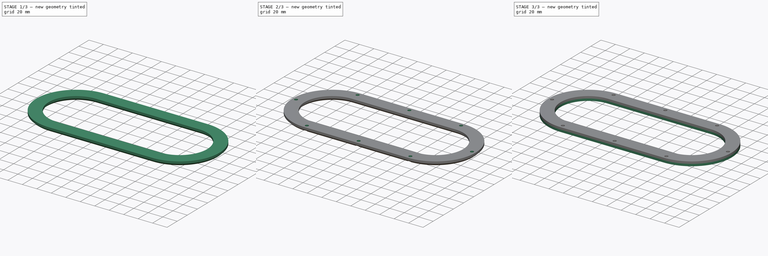
[diagram: build sequence overview — one tinted view per stage of 3, left to right]
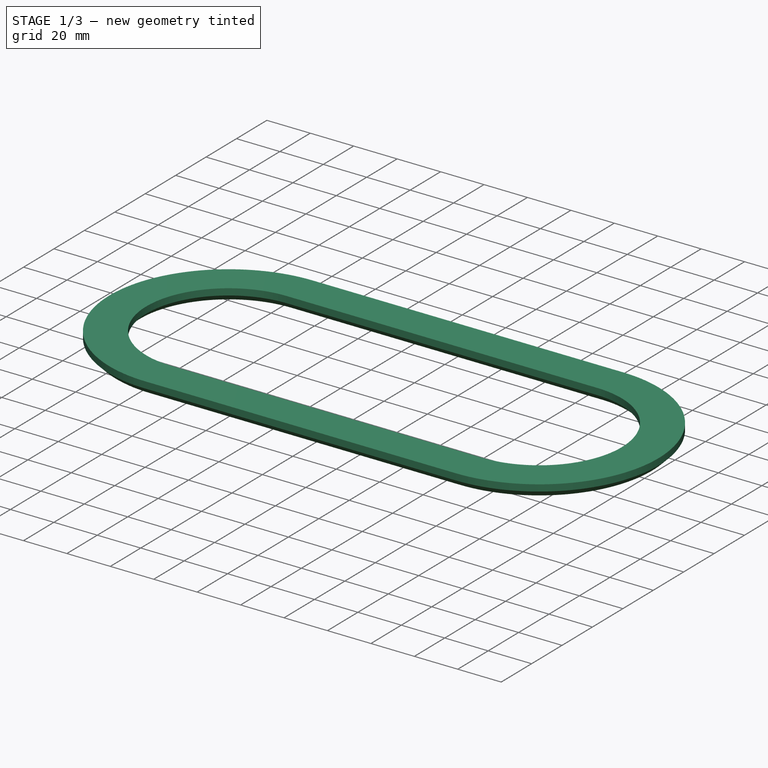
[diagram: stage 1 of 3 — iso view after this stage's code; geometry added in this stage tinted green]
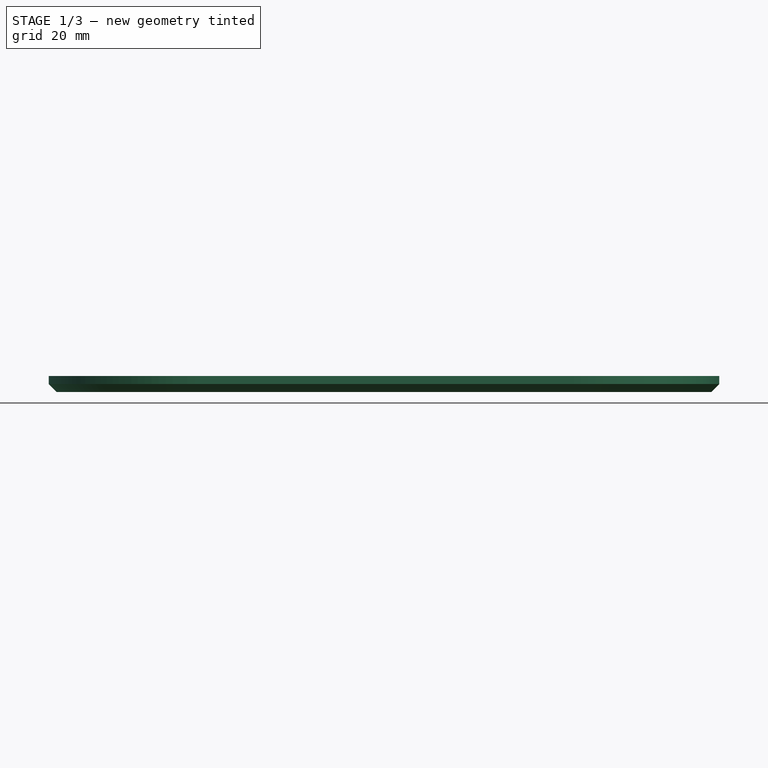
[diagram: stage 1 of 3 — front view after this stage's code; geometry added in this stage tinted green]
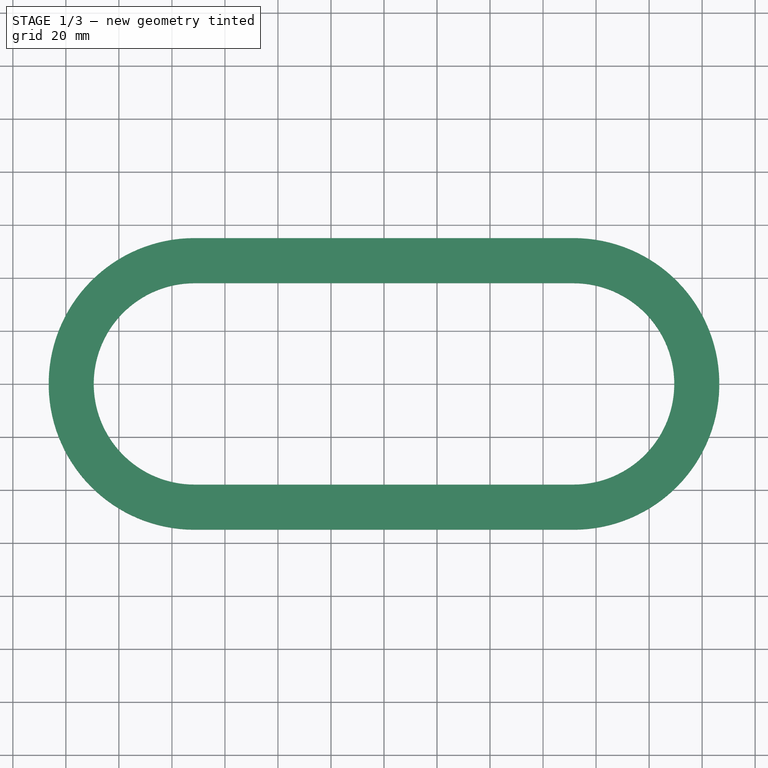
[diagram: stage 1 of 3 — top view after this stage's code; geometry added in this stage tinted green]
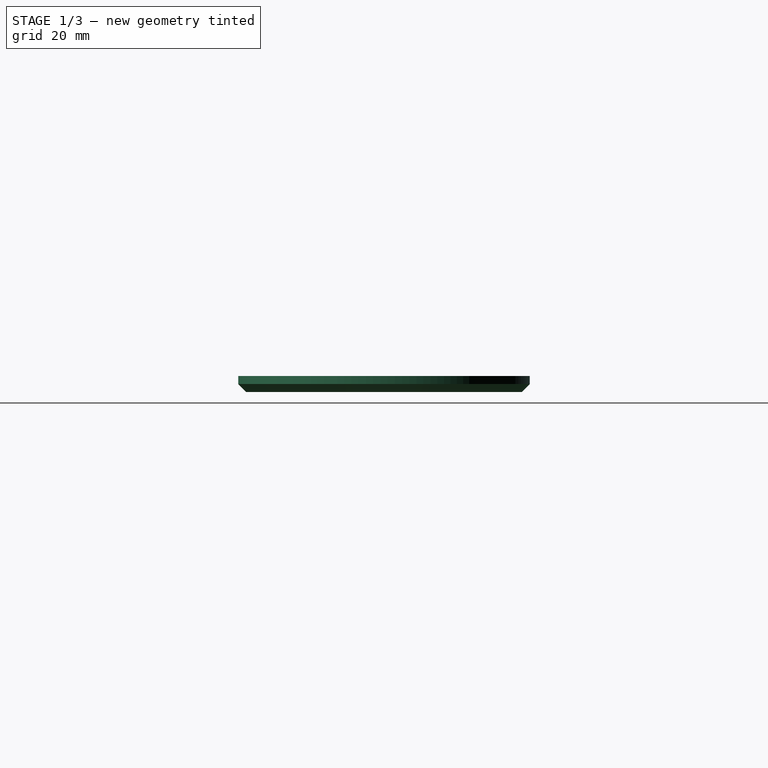
[diagram: stage 1 of 3 — right view after this stage's code; geometry added in this stage tinted green]
FCSTD DOCUMENT  (FreeCAD 0.21R33771 (Git))
Label: AC_Duct_Coupling
License: All rights reserved
LicenseURL: https://en.wikipedia.org/wiki/All_rights_reserved
objects: Sketcher::SketchObject×5, PartDesign::Pad×2, PartDesign::Hole×2, PartDesign::Body×2, Spreadsheet::Sheet×1, PartDesign::Chamfer×1, PartDesign::Pocket×1
note: 19 computed .brp shape members not serialized (recipe doc carries the construction recipe); baked Part::Feature solids carry a one-line shape summary decoded from their .brp

FEATURE [PartDesign::Body] Body
  Group = -> [Sketch,Pad,Sketch001,Hole]
  Origin = -> Origin
  Tip = -> Hole
FEATURE [Sketcher::SketchObject] Sketch002
  FullyConstrained = true
  MapMode = 5
  Support = -> [XY_Plane001]
  expr: Constraints[12] = <<config>>.height + 2 * <<config>>.x_clearance
  expr: Constraints[14] = <<config>>.length - <<config>>.height + 2 * <<config>>.x_clearance
  expr: Constraints[15] = <<config>>.flange + <<config>>.flange_ext
  sketch-geometry (10):
    g0: ArcOfCircle CenterX=-71.5 CenterY=0 CenterZ=0 NormalX=0 NormalY=0 NormalZ=1 AngleXU=0 Radius=55 StartAngle=1.5708 EndAngle=4.71239
    g1: ArcOfCircle CenterX=71.5 CenterY=2e-16 CenterZ=0 NormalX=0 NormalY=0 NormalZ=1 AngleXU=0 Radius=55 StartAngle=4.71239 EndAngle=7.85398
    g2: LineSegment StartX=-71.5 StartY=-55 StartZ=0 EndX=71.5 EndY=-55 EndZ=0
    g3: LineSegment StartX=71.5 StartY=55 StartZ=0 EndX=-71.5 EndY=55 EndZ=0
    g4: ArcOfCircle CenterX=-71.5 CenterY=0 CenterZ=0 NormalX=0 NormalY=0 NormalZ=1 AngleXU=0 Radius=38 StartAngle=1.5708 EndAngle=4.71239
    g5: ArcOfCircle CenterX=71.5 CenterY=2e-16 CenterZ=0 NormalX=0 NormalY=0 NormalZ=1 AngleXU=0 Radius=38 StartAngle=4.71239 EndAngle=7.85398
    g6: LineSegment StartX=-71.5 StartY=-38 StartZ=0 EndX=71.5 EndY=-38 EndZ=0
    g7: LineSegment StartX=71.5 StartY=38 StartZ=0 EndX=-71.5 EndY=38 EndZ=0
    g8: LineSegment StartX=-71.5 StartY=0 StartZ=0 EndX=0 EndY=0 EndZ=0
    g9: LineSegment StartX=0 StartY=0 StartZ=0 EndX=71.5 EndY=2e-16 EndZ=0
  constraints (22):
    c: Tangent(g0,g2) = -1.5708
    c: Tangent(g2,g1) = -1.5708
    c: Tangent(g1,g3) = -1.5708
    c: Tangent(g3,g0) = -1.5708
    c: Equal(g0,g1)
    c: Horizontal(g2)
    c: Tangent(g4,g6) = -1.5708
    c: Tangent(g6,g5) = -1.5708
    c: Tangent(g5,g7) = -1.5708
    c: Tangent(g7,g4) = -1.5708
    c: Equal(g4,g5)
    c: Coincident(g4,g0)
    c: DistanceY(g4,g4) = 76
    c: Coincident(g1,g5)
    c: DistanceX(g7,g7) = 143
    c: DistanceY(g4,g0) = 17
    c: Coincident(g8,g0)
    c: Horizontal(g8)
    c: Coincident(g9,g8)
    c: Coincident(g9,g1)
    c: Equal(g8,g9)
    c: Coincident(g8,g-1)
FEATURE [PartDesign::Pad] Pad001
  Direction = (0,0,1)
  Length = 6
  Length2 = 10
  Profile = -> Sketch002
  ReferenceAxis = -> Sketch002 [N_Axis]
  Type = 0
FEATURE [Sketcher::SketchObject] Sketch003
  FullyConstrained = true
  MapMode = 5
  Support = -> [XY_Plane001]
  expr: Constraints[177] = 5.5 + 2 * 0.15
  expr: Constraints[5] = <<config>>.height + 2 * <<config>>.x_clearance + 2 * <<config>>.flange + <<config>>.flange_ext
  expr: Constraints[6] = <<config>>.length - <<config>>.height + 2 * <<config>>.x_clearance
  sketch-geometry (62):
    g0: ArcOfCircle CenterX=-71.5 CenterY=0 CenterZ=0 NormalX=0 NormalY=0 NormalZ=1 AngleXU=0 Radius=50 StartAngle=1.5708 EndAngle=4.71239
    g1: ArcOfCircle CenterX=71.5 CenterY=5e-16 CenterZ=0 NormalX=0 NormalY=0 NormalZ=1 AngleXU=0 Radius=50 StartAngle=4.71239 EndAngle=7.85398
    g2: LineSegment StartX=-71.5 StartY=-50 StartZ=0 EndX=71.5 EndY=-50 EndZ=0
    g3: LineSegment StartX=71.5 StartY=50 StartZ=0 EndX=-71.5 EndY=50 EndZ=0
    g4: LineSegment StartX=-71.5 StartY=0 StartZ=0 EndX=0 EndY=0 EndZ=0
    g5: LineSegment StartX=0 StartY=0 StartZ=0 EndX=71.5 EndY=5e-16 EndZ=0
    g6: LineSegment StartX=-118.151 StartY=-3.9435e-12 StartZ=0 EndX=-119.826 EndY=2.9 EndZ=0
    g7: LineSegment StartX=-119.826 StartY=2.9 StartZ=0 EndX=-123.174 EndY=2.9 EndZ=0
    g8: LineSegment StartX=-123.174 StartY=2.9 StartZ=0 EndX=-124.849 EndY=-5.2824e-12 EndZ=0
    g9: LineSegment StartX=-124.849 StartY=-5.2824e-12 StartZ=0 EndX=-123.174 EndY=-2.9 EndZ=0
    g10: LineSegment StartX=-123.174 StartY=-2.9 StartZ=0 EndX=-119.826 EndY=-2.9 EndZ=0
    g11: LineSegment StartX=-119.826 StartY=-2.9 StartZ=0 EndX=-118.151 EndY=-3.9435e-12 EndZ=0
    g12: Circle CenterX=-121.5 CenterY=0 CenterZ=0 NormalX=0 NormalY=0 NormalZ=1 AngleXU=0 Radius=3.34863
    g13: LineSegment StartX=-69.8257 StartY=-52.9 StartZ=0 EndX=-68.1514 EndY=-50 EndZ=0
    g14: LineSegment StartX=-68.1514 StartY=-50 StartZ=0 EndX=-69.8257 EndY=-47.1 EndZ=0
    g15: LineSegment StartX=-69.8257 StartY=-47.1 StartZ=0 EndX=-73.1743 EndY=-47.1 EndZ=0
    g16: LineSegment StartX=-73.1743 StartY=-47.1 StartZ=0 EndX=-74.8486 EndY=-50 EndZ=0
    g17: LineSegment StartX=-74.8486 StartY=-50 StartZ=0 EndX=-73.1743 EndY=-52.9 EndZ=0
    g18: LineSegment StartX=-73.1743 StartY=-52.9 StartZ=0 EndX=-69.8257 EndY=-52.9 EndZ=0
    g19: Circle CenterX=-71.5 CenterY=-50 CenterZ=0 NormalX=0 NormalY=0 NormalZ=1 AngleXU=0 Radius=3.34863
    g20: LineSegment StartX=-69.8257 StartY=47.1 StartZ=0 EndX=-68.1514 EndY=50 EndZ=0
    g21: LineSegment StartX=-68.1514 StartY=50 StartZ=0 EndX=-69.8257 EndY=52.9 EndZ=0
    g22: LineSegment StartX=-69.8257 StartY=52.9 StartZ=0 EndX=-73.1743 EndY=52.9 EndZ=0
    g23: LineSegment StartX=-73.1743 StartY=52.9 StartZ=0 EndX=-74.8486 EndY=50 EndZ=0
    g24: LineSegment StartX=-74.8486 StartY=50 StartZ=0 EndX=-73.1743 EndY=47.1 EndZ=0
    g25: LineSegment StartX=-73.1743 StartY=47.1 StartZ=0 EndX=-69.8257 EndY=47.1 EndZ=0
    g26: Circle CenterX=-71.5 CenterY=50 CenterZ=0 NormalX=0 NormalY=0 NormalZ=1 AngleXU=0 Radius=3.34863
    g27: LineSegment StartX=1.67432 StartY=47.1 StartZ=0 EndX=3.34863 EndY=50 EndZ=0
    g28: LineSegment StartX=3.34863 StartY=50 StartZ=0 EndX=1.67432 EndY=52.9 EndZ=0
    g29: LineSegment StartX=1.67432 StartY=52.9 StartZ=0 EndX=-1.67432 EndY=52.9 EndZ=0
    g30: LineSegment StartX=-1.67432 StartY=52.9 StartZ=0 EndX=-3.34863 EndY=50 EndZ=0
    g31: LineSegment StartX=-3.34863 StartY=50 StartZ=0 EndX=-1.67432 EndY=47.1 EndZ=0
    g32: LineSegment StartX=-1.67432 StartY=47.1 StartZ=0 EndX=1.67432 EndY=47.1 EndZ=0
    g33: Circle CenterX=0 CenterY=50 CenterZ=0 NormalX=0 NormalY=0 NormalZ=1 AngleXU=0 Radius=3.34863
    g34: LineSegment StartX=73.1743 StartY=47.1 StartZ=0 EndX=74.8486 EndY=50 EndZ=0
    g35: LineSegment StartX=74.8486 StartY=50 StartZ=0 EndX=73.1743 EndY=52.9 EndZ=0
    g36: LineSegment StartX=73.1743 StartY=52.9 StartZ=0 EndX=69.8257 EndY=52.9 EndZ=0
    g37: LineSegment StartX=69.8257 StartY=52.9 StartZ=0 EndX=68.1514 EndY=50 EndZ=0
    g38: LineSegment StartX=68.1514 StartY=50 StartZ=0 EndX=69.8257 EndY=47.1 EndZ=0
    g39: LineSegment StartX=69.8257 StartY=47.1 StartZ=0 EndX=73.1743 EndY=47.1 EndZ=0
    g40: Circle CenterX=71.5 CenterY=50 CenterZ=0 NormalX=0 NormalY=0 NormalZ=1 AngleXU=0 Radius=3.34863
    g41: LineSegment StartX=123.174 StartY=-2.9 StartZ=0 EndX=124.849 EndY=0 EndZ=0
    g42: LineSegment StartX=124.849 StartY=2e-16 StartZ=0 EndX=123.174 EndY=2.9 EndZ=0
    g43: LineSegment StartX=123.174 StartY=2.9 StartZ=0 EndX=119.826 EndY=2.9 EndZ=0
    g44: LineSegment StartX=119.826 StartY=2.9 StartZ=0 EndX=118.151 EndY=0 EndZ=0
    g45: LineSegment StartX=118.151 StartY=0 StartZ=0 EndX=119.826 EndY=-2.9 EndZ=0
    g46: LineSegment StartX=119.826 StartY=-2.9 StartZ=0 EndX=123.174 EndY=-2.9 EndZ=0
    g47: Circle CenterX=121.5 CenterY=0 CenterZ=0 NormalX=0 NormalY=0 NormalZ=1 AngleXU=0 Radius=3.34863
    g48: LineSegment StartX=73.1743 StartY=-52.9 StartZ=0 EndX=74.8486 EndY=-50 EndZ=0
    g49: LineSegment StartX=74.8486 StartY=-50 StartZ=0 EndX=73.1743 EndY=-47.1 EndZ=0
    g50: LineSegment StartX=73.1743 StartY=-47.1 StartZ=0 EndX=69.8257 EndY=-47.1 EndZ=0
    g51: LineSegment StartX=69.8257 StartY=-47.1 StartZ=0 EndX=68.1514 EndY=-50 EndZ=0
    g52: LineSegment StartX=68.1514 StartY=-50 StartZ=0 EndX=69.8257 EndY=-52.9 EndZ=0
    g53: LineSegment StartX=69.8257 StartY=-52.9 StartZ=0 EndX=73.1743 EndY=-52.9 EndZ=0
    g54: Circle CenterX=71.5 CenterY=-50 CenterZ=0 NormalX=0 NormalY=0 NormalZ=1 AngleXU=0 Radius=3.34863
    g55: LineSegment StartX=3.34863 StartY=-50 StartZ=0 EndX=1.67432 EndY=-47.1 EndZ=0
    g56: LineSegment StartX=1.67432 StartY=-47.1 StartZ=0 EndX=-1.67432 EndY=-47.1 EndZ=0
    g57: LineSegment StartX=-1.67432 StartY=-47.1 StartZ=0 EndX=-3.34863 EndY=-50 EndZ=0
    g58: LineSegment StartX=-3.34863 StartY=-50 StartZ=0 EndX=-1.67432 EndY=-52.9 EndZ=0
    g59: LineSegment StartX=-1.67432 StartY=-52.9 StartZ=0 EndX=1.67432 EndY=-52.9 EndZ=0
    g60: LineSegment StartX=1.67432 StartY=-52.9 StartZ=0 EndX=3.34863 EndY=-50 EndZ=0
    g61: Circle CenterX=0 CenterY=-50 CenterZ=0 NormalX=0 NormalY=0 NormalZ=1 AngleXU=0 Radius=3.34863
  constraints (146):
    c: Tangent(g0,g2) = -1.5708
    c: Tangent(g2,g1) = -1.5708
    c: Tangent(g1,g3) = -1.5708
    c: Tangent(g3,g0) = -1.5708
    c: Equal(g0,g1)
    c: DistanceY(g0,g0) = 100
    c: DistanceX(g3,g3) = 143
    c: Horizontal(g4)
    c: Coincident(g5,g4)
    c: Equal(g4,g5)
    c: Coincident(g4,g-1)
    c: Horizontal(g3)
    c: Coincident(g5,g1)
    c: Coincident(g4,g0)
    c: Coincident(g6,g7)
    c: Coincident(g7,g8)
    c: Coincident(g8,g9)
    c: Coincident(g9,g10)
    c: Coincident(g10,g11)
    c: Coincident(g11,g6)
    c: Equal(g6, g7-g11) x5
    c: PointOnObject(g6,g12)
    c: PointOnObject(g7,g12)
    c: PointOnObject(g8,g12)
    c: PointOnObject(g9,g12)
    c: PointOnObject(g10,g12)
    c: PointOnObject(g11,g12)
    c: PointOnObject(g12,g0)
    c: Coincident(g13,g14)
    c: Coincident(g14,g15)
    c: Coincident(g15,g16)
    c: Coincident(g16,g17)
    c: Coincident(g17,g18)
    c: Coincident(g18,g13)
    c: Equal(g13, g14-g18) x5
    c: PointOnObject(g13,g19)
    c: PointOnObject(g14,g19)
    c: PointOnObject(g15,g19)
    c: PointOnObject(g16,g19)
    c: PointOnObject(g17,g19)
    c: PointOnObject(g18,g19)
    c: Coincident(g19,g0)
    c: Coincident(g20,g21)
    c: Coincident(g21,g22)
    c: Coincident(g22,g23)
    c: Coincident(g23,g24)
    c: Coincident(g24,g25)
    c: Coincident(g25,g20)
    c: Equal(g20, g21-g25) x5
    c: PointOnObject(g20,g26)
    c: PointOnObject(g21,g26)
    c: PointOnObject(g22,g26)
    c: PointOnObject(g23,g26)
    c: PointOnObject(g24,g26)
    c: PointOnObject(g25,g26)
    c: Coincident(g26,g0)
    c: Coincident(g27,g28)
    c: Coincident(g28,g29)
    c: Coincident(g29,g30)
    c: Coincident(g30,g31)
    c: Coincident(g31,g32)
    c: Coincident(g32,g27)
    c: Equal(g27, g28-g32) x5
    c: PointOnObject(g27,g33)
    c: PointOnObject(g28,g33)
    c: PointOnObject(g29,g33)
    c: PointOnObject(g30,g33)
    c: PointOnObject(g31,g33)
    c: PointOnObject(g32,g33)
    c: PointOnObject(g33,g-2)
    c: Coincident(g34,g35)
    c: Coincident(g35,g36)
    c: Coincident(g36,g37)
    c: Coincident(g37,g38)
    c: Coincident(g38,g39)
    c: Coincident(g39,g34)
    c: Equal(g34, g35-g39) x5
    c: PointOnObject(g34,g40)
    c: PointOnObject(g35,g40)
    c: PointOnObject(g36,g40)
    c: PointOnObject(g37,g40)
    c: PointOnObject(g38,g40)
    c: PointOnObject(g39,g40)
    c: Coincident(g40,g1)
    c: Coincident(g41,g42)
    c: Coincident(g42,g43)
    c: Coincident(g43,g44)
    c: Coincident(g44,g45)
    c: Coincident(g45,g46)
    c: Coincident(g46,g41)
    c: Equal(g41, g42-g46) x5
    c: PointOnObject(g41,g47)
    c: PointOnObject(g42,g47)
    c: PointOnObject(g43,g47)
    c: PointOnObject(g44,g47)
    c: PointOnObject(g45,g47)
    c: PointOnObject(g46,g47)
    c: PointOnObject(g47,g1)
    c: Coincident(g48,g49)
    c: Coincident(g49,g50)
    c: Coincident(g50,g51)
    c: Coincident(g51,g52)
    c: Coincident(g52,g53)
    c: Coincident(g53,g48)
    c: Equal(g48, g49-g53) x5
    c: PointOnObject(g48,g54)
    c: PointOnObject(g49,g54)
    c: PointOnObject(g50,g54)
    c: PointOnObject(g51,g54)
    c: PointOnObject(g52,g54)
    c: PointOnObject(g53,g54)
    c: Coincident(g54,g1)
    c: Horizontal(g53)
    c: Horizontal(g46)
    c: Horizontal(g39)
    c: Horizontal(g32)
    c: Horizontal(g25)
    c: Horizontal(g10)
    c: Equal(g26,g12)
    c: Equal(g12,g19)
    c: Equal(g54,g47)
    c: Equal(g47,g40)
    c: Equal(g40,g33)
    c: Horizontal(g18)
    c: PointOnObject(g12,g-1)
    c: Equal(g26,g33)
    c: Coincident(g55,g56)
    c: Coincident(g56,g57)
    c: Coincident(g57,g58)
    c: Coincident(g58,g59)
    c: Coincident(g59,g60)
    c: Coincident(g60,g55)
    c: Equal(g55, g56-g60) x5
    c: PointOnObject(g55,g61)
    c: PointOnObject(g56,g61)
    c: PointOnObject(g57,g61)
    c: PointOnObject(g58,g61)
    c: PointOnObject(g59,g61)
    c: PointOnObject(g60,g61)
    c: PointOnObject(g61,g-2)
    c: Horizontal(g59)
    c: Equal(g19,g61)
    c: PointOnObject(g61,g2)
    c: PointOnObject(g47,g-1)
    c: PointOnObject(g33,g3)
    c: DistanceY(g9,g7) = 5.8
FEATURE [PartDesign::Chamfer] Chamfer
  Angle = 45
  Base = -> Pad001 [Edge6,Edge9,Edge11,Edge3,Edge18,Edge15,Edge23,Edge21]
  BaseFeature = -> Pad001
  ChamferType = 0
  FlipDirection = false
  Size = 3
  Size2 = 1
  SupportTransform = false
  UseAllEdges = false
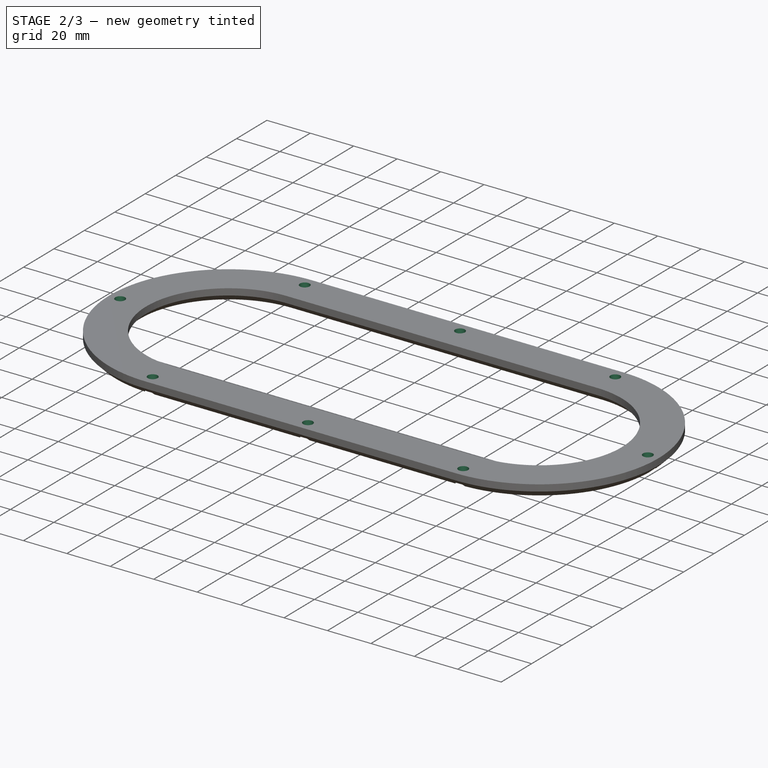
[diagram: stage 2 of 3 — iso view after this stage's code; geometry added in this stage tinted green]
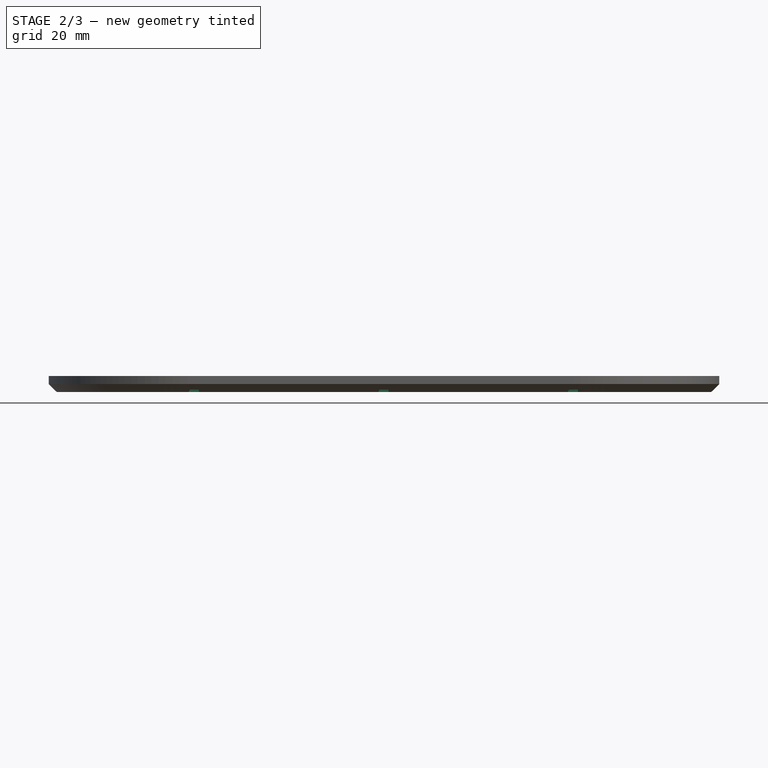
[diagram: stage 2 of 3 — front view after this stage's code; geometry added in this stage tinted green]
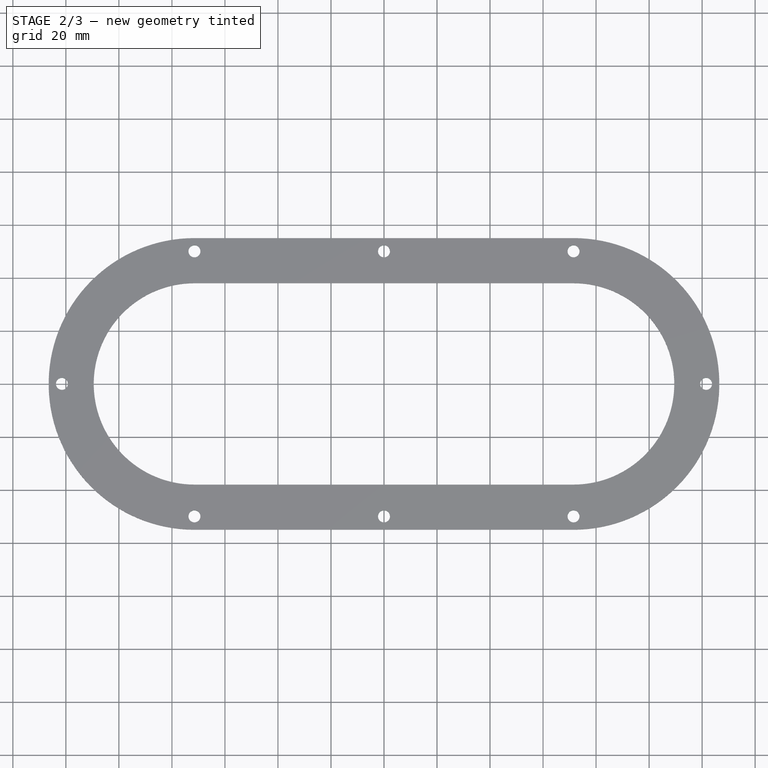
[diagram: stage 2 of 3 — top view after this stage's code; geometry added in this stage tinted green]
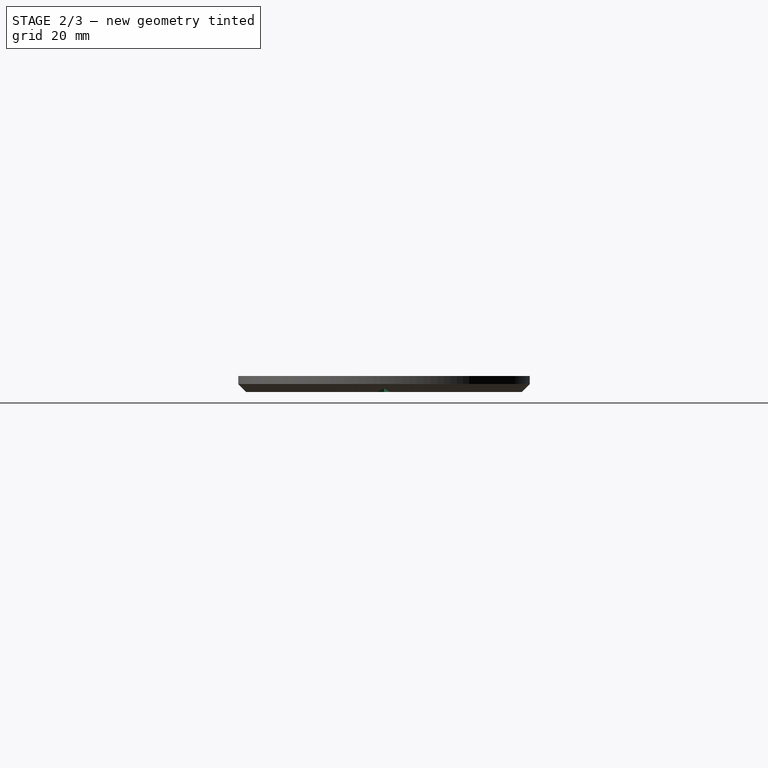
[diagram: stage 2 of 3 — right view after this stage's code; geometry added in this stage tinted green]
FEATURE [PartDesign::Pocket] Pocket
  BaseFeature = -> Chamfer
  Direction = (0,0,-1)
  Length = 4
  Length2 = 5
  Profile = -> Sketch003
  ReferenceAxis = -> Sketch003 [N_Axis]
  Reversed = true
  Type = 0
FEATURE [Sketcher::SketchObject] Sketch004
  FullyConstrained = true
  MapMode = 5
  Support = -> [XY_Plane001]
  expr: Constraints[5] = <<config>>.height + 2 * <<config>>.x_clearance + 2 * <<config>>.flange + <<config>>.flange_ext
  expr: Constraints[6] = <<config>>.length - <<config>>.height + 2 * <<config>>.x_clearance
  sketch-geometry (14):
    g0: ArcOfCircle CenterX=-71.5 CenterY=0 CenterZ=0 NormalX=0 NormalY=0 NormalZ=1 AngleXU=0 Radius=50 StartAngle=1.5708 EndAngle=4.71239
    g1: ArcOfCircle CenterX=71.5 CenterY=-2.4e-15 CenterZ=0 NormalX=0 NormalY=0 NormalZ=1 AngleXU=0 Radius=50 StartAngle=4.71239 EndAngle=7.85398
    g2: LineSegment StartX=-71.5 StartY=-50 StartZ=0 EndX=71.5 EndY=-50 EndZ=0
    g3: LineSegment StartX=71.5 StartY=50 StartZ=0 EndX=-71.5 EndY=50 EndZ=0
    g4: LineSegment StartX=-71.5 StartY=0 StartZ=0 EndX=0 EndY=0 EndZ=0
    g5: LineSegment StartX=0 StartY=0 StartZ=0 EndX=71.5 EndY=-2.4e-15 EndZ=0
    g6: Circle CenterX=-71.5 CenterY=50 CenterZ=0 NormalX=0 NormalY=0 NormalZ=1 AngleXU=0 Radius=2
    g7: Circle CenterX=-121.5 CenterY=0 CenterZ=0 NormalX=0 NormalY=0 NormalZ=1 AngleXU=0 Radius=2
    g8: Circle CenterX=-71.5 CenterY=-50 CenterZ=0 NormalX=0 NormalY=0 NormalZ=1 AngleXU=0 Radius=2
    g9: Circle CenterX=71.5 CenterY=-50 CenterZ=0 NormalX=0 NormalY=0 NormalZ=1 AngleXU=0 Radius=2
    g10: Circle CenterX=121.5 CenterY=0 CenterZ=0 NormalX=0 NormalY=0 NormalZ=1 AngleXU=0 Radius=2
    g11: Circle CenterX=71.5 CenterY=50 CenterZ=0 NormalX=0 NormalY=0 NormalZ=1 AngleXU=0 Radius=2
    g12: Circle CenterX=0 CenterY=50 CenterZ=0 NormalX=0 NormalY=0 NormalZ=1 AngleXU=0 Radius=2
    g13: Circle CenterX=0 CenterY=-50 CenterZ=0 NormalX=0 NormalY=0 NormalZ=1 AngleXU=0 Radius=2
  constraints (34):
    c: Tangent(g0,g2) = -1.5708
    c: Tangent(g2,g1) = -1.5708
    c: Tangent(g1,g3) = -1.5708
    c: Tangent(g3,g0) = -1.5708
    c: Equal(g0,g1)
    c: DistanceY(g0,g0) = 100
    c: DistanceX(g3,g3) = 143
    c: Horizontal(g4)
    c: Coincident(g5,g4)
    c: Equal(g4,g5)
    c: Coincident(g4,g-1)
    c: Horizontal(g3)
    c: Coincident(g5,g1)
    c: Coincident(g4,g0)
    c: Coincident(g6,g0)
    c: PointOnObject(g7,g0)
    c: Coincident(g8,g0)
    c: Coincident(g9,g1)
    c: PointOnObject(g10,g1)
    c: Coincident(g11,g1)
    c: PointOnObject(g12,g3)
    c: PointOnObject(g13,g2)
    c: Equal(g13,g8)
    c: Equal(g8,g9)
    c: Equal(g9,g10)
    c: Equal(g10,g11)
    c: Equal(g11,g12)
    c: Equal(g12,g6)
    c: Equal(g6,g7)
    c: Diameter(g12) = 4
    c: PointOnObject(g7,g-1)
    c: PointOnObject(g10,g-1)
    c: PointOnObject(g12,g-2)
    c: PointOnObject(g13,g-2)
FEATURE [PartDesign::Hole] Hole001
  BaseFeature = -> Pocket
  CustomThreadClearance = 0
  Depth = 25
  DepthType = 0
  Diameter = 4.5
  DrillForDepth = false
  DrillPoint = 1
  DrillPointAngle = 118
  HoleCutCountersinkAngle = 90
  HoleCutCustomValues = false
  HoleCutDepth = 0
  HoleCutDiameter = 6.1
  HoleCutType = 0
  ModelThread = false
  Profile = -> Sketch004
  Reversed = true
  Tapered = false
  TaperedAngle = 90
  ThreadClass = 0
  ThreadDepth = 25
  ThreadDepthType = 0
  ThreadDirection = 0
  ThreadFit = 0
  ThreadSize = 0
  ThreadType = 0
  Threaded = false
  UseCustomThreadClearance = false
FEATURE [PartDesign::Body] Body001  label="BodyOutside"
  Group = -> [Sketch002,Pad001,Sketch003,Chamfer,Pocket,Sketch004,Hole001]
  Origin = -> Origin001
  Tip = -> Hole001
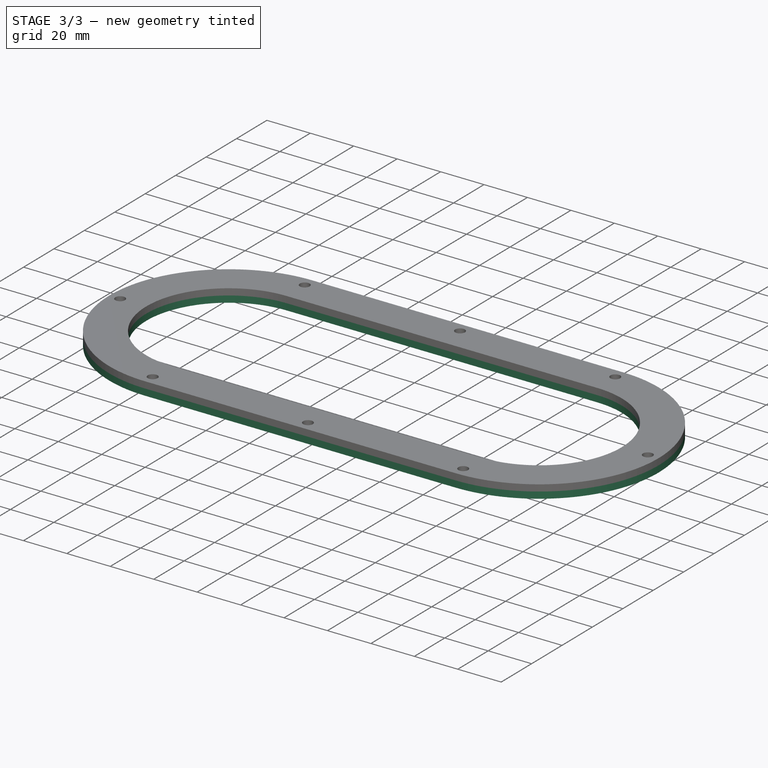
[diagram: stage 3 of 3 — iso view after this stage's code; geometry added in this stage tinted green]
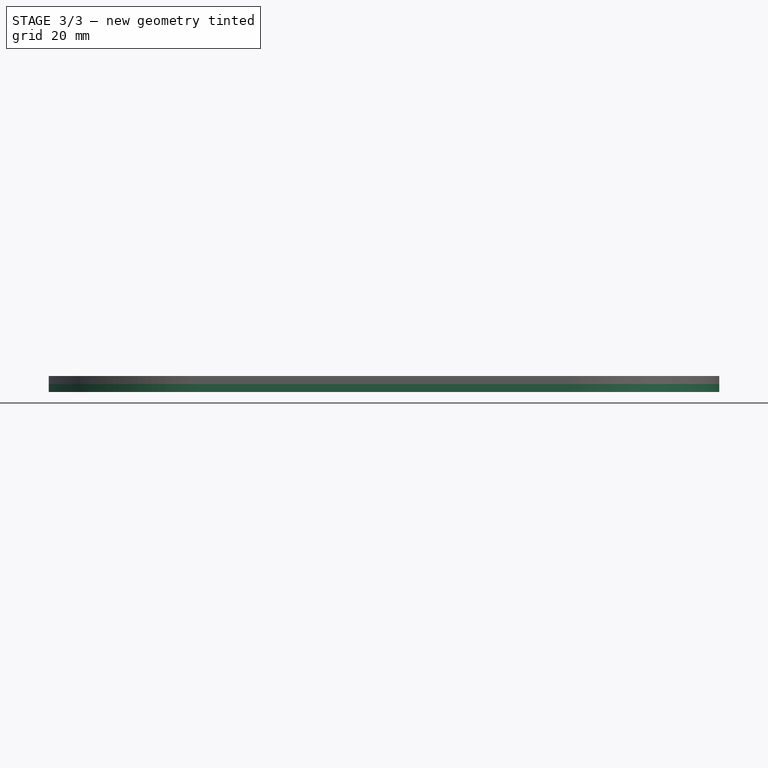
[diagram: stage 3 of 3 — front view after this stage's code; geometry added in this stage tinted green]
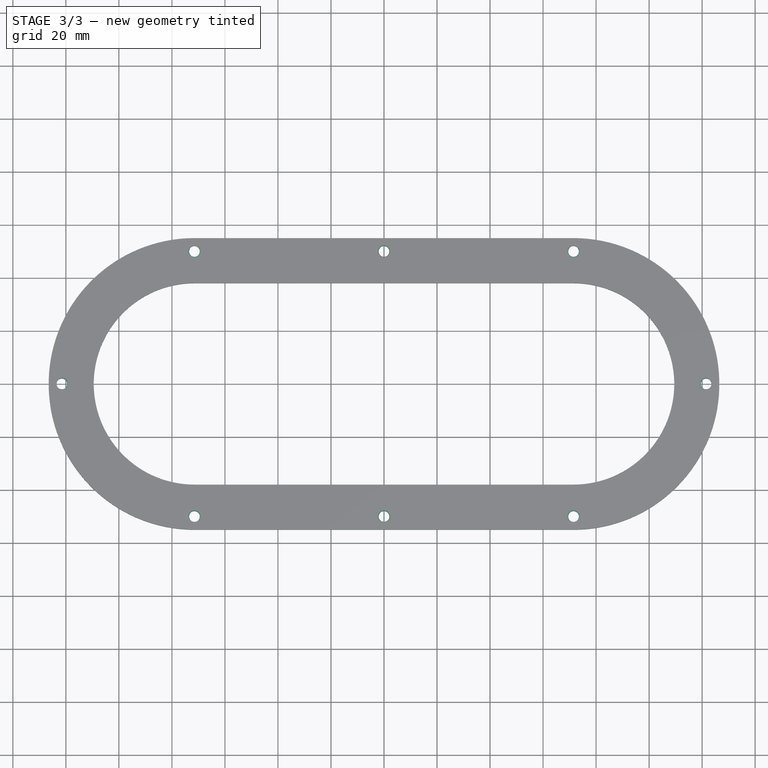
[diagram: stage 3 of 3 — top view after this stage's code; geometry added in this stage tinted green]
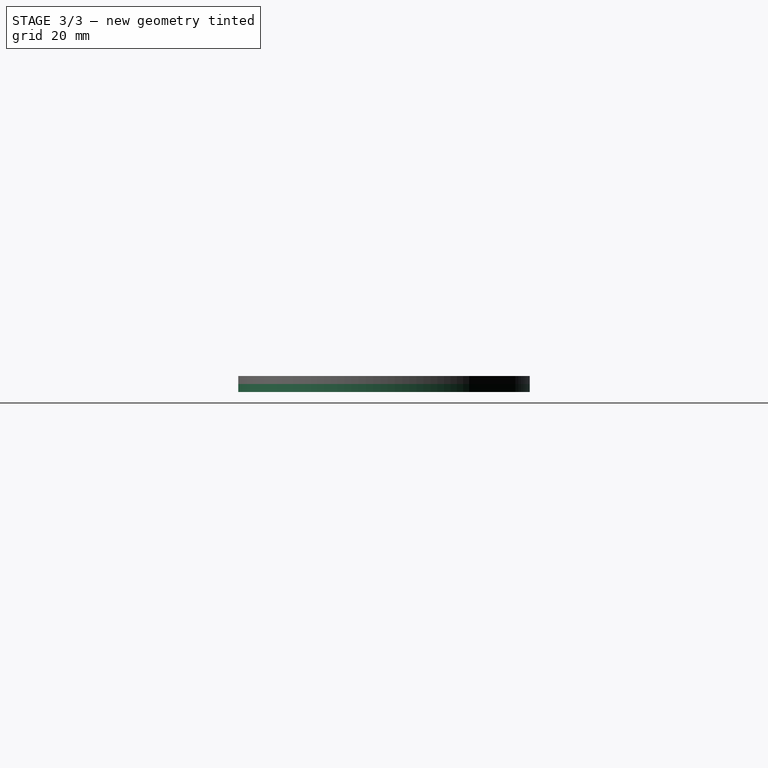
[diagram: stage 3 of 3 — right view after this stage's code; geometry added in this stage tinted green]
FEATURE [Spreadsheet::Sheet] Spreadsheet  label="config"
  cells = A1='height; B1(height)==74 mm; A2='length; B2(length)==215 mm; A3='thickness; B3(thick)==3 mm; A4='flange; B4(flange)==7 mm; A5='x clearance; B5(x_clearance)==1 mm; A6='flange extend; B6(flange_ext)==10 mm
FEATURE [Sketcher::SketchObject] Sketch
  FullyConstrained = true
  MapMode = 5
  Support = -> [XY_Plane]
  expr: Constraints[12] = <<config>>.height + 2 * <<config>>.x_clearance
  expr: Constraints[14] = <<config>>.length - <<config>>.height + 2 * <<config>>.x_clearance
  expr: Constraints[15] = <<config>>.flange + <<config>>.flange_ext
  sketch-geometry (10):
    g0: ArcOfCircle CenterX=-71.5 CenterY=0 CenterZ=0 NormalX=0 NormalY=0 NormalZ=1 AngleXU=0 Radius=55 StartAngle=1.5708 EndAngle=4.71239
    g1: ArcOfCircle CenterX=71.5 CenterY=2e-16 CenterZ=0 NormalX=0 NormalY=0 NormalZ=1 AngleXU=0 Radius=55 StartAngle=4.71239 EndAngle=7.85398
    g2: LineSegment StartX=-71.5 StartY=-55 StartZ=0 EndX=71.5 EndY=-55 EndZ=0
    g3: LineSegment StartX=71.5 StartY=55 StartZ=0 EndX=-71.5 EndY=55 EndZ=0
    g4: ArcOfCircle CenterX=-71.5 CenterY=0 CenterZ=0 NormalX=0 NormalY=0 NormalZ=1 AngleXU=0 Radius=38 StartAngle=1.5708 EndAngle=4.71239
    g5: ArcOfCircle CenterX=71.5 CenterY=2e-16 CenterZ=0 NormalX=0 NormalY=0 NormalZ=1 AngleXU=0 Radius=38 StartAngle=4.71239 EndAngle=7.85398
    g6: LineSegment StartX=-71.5 StartY=-38 StartZ=0 EndX=71.5 EndY=-38 EndZ=0
    g7: LineSegment StartX=71.5 StartY=38 StartZ=0 EndX=-71.5 EndY=38 EndZ=0
    g8: LineSegment StartX=-71.5 StartY=0 StartZ=0 EndX=0 EndY=0 EndZ=0
    g9: LineSegment StartX=0 StartY=0 StartZ=0 EndX=71.5 EndY=2e-16 EndZ=0
  constraints (22):
    c: Tangent(g0,g2) = -1.5708
    c: Tangent(g2,g1) = -1.5708
    c: Tangent(g1,g3) = -1.5708
    c: Tangent(g3,g0) = -1.5708
    c: Equal(g0,g1)
    c: Horizontal(g2)
    c: Tangent(g4,g6) = -1.5708
    c: Tangent(g6,g5) = -1.5708
    c: Tangent(g5,g7) = -1.5708
    c: Tangent(g7,g4) = -1.5708
    c: Equal(g4,g5)
    c: Coincident(g4,g0)
    c: DistanceY(g4,g4) = 76
    c: Coincident(g1,g5)
    c: DistanceX(g7,g7) = 143
    c: DistanceY(g4,g0) = 17
    c: Coincident(g8,g0)
    c: Horizontal(g8)
    c: Coincident(g9,g8)
    c: Coincident(g9,g1)
    c: Equal(g8,g9)
    c: Coincident(g8,g-1)
FEATURE [PartDesign::Pad] Pad
  Direction = (0,0,1)
  Length = 3
  Length2 = 10
  Profile = -> Sketch
  ReferenceAxis = -> Sketch [N_Axis]
  Type = 0
  expr: Length = <<config>>.thick
FEATURE [Sketcher::SketchObject] Sketch001
  FullyConstrained = true
  MapMode = 5
  Support = -> [XY_Plane]
  expr: Constraints[5] = <<config>>.height + 2 * <<config>>.x_clearance + 2 * <<config>>.flange + <<config>>.flange_ext
  expr: Constraints[6] = <<config>>.length - <<config>>.height + 2 * <<config>>.x_clearance
  sketch-geometry (14):
    g0: ArcOfCircle CenterX=-71.5 CenterY=0 CenterZ=0 NormalX=0 NormalY=0 NormalZ=1 AngleXU=0 Radius=50 StartAngle=1.5708 EndAngle=4.71239
    g1: ArcOfCircle CenterX=71.5 CenterY=-2.4e-15 CenterZ=0 NormalX=0 NormalY=0 NormalZ=1 AngleXU=0 Radius=50 StartAngle=4.71239 EndAngle=7.85398
    g2: LineSegment StartX=-71.5 StartY=-50 StartZ=0 EndX=71.5 EndY=-50 EndZ=0
    g3: LineSegment StartX=71.5 StartY=50 StartZ=0 EndX=-71.5 EndY=50 EndZ=0
    g4: LineSegment StartX=-71.5 StartY=0 StartZ=0 EndX=0 EndY=0 EndZ=0
    g5: LineSegment StartX=0 StartY=0 StartZ=0 EndX=71.5 EndY=-2.4e-15 EndZ=0
    g6: Circle CenterX=-71.5 CenterY=50 CenterZ=0 NormalX=0 NormalY=0 NormalZ=1 AngleXU=0 Radius=2
    g7: Circle CenterX=-121.5 CenterY=0 CenterZ=0 NormalX=0 NormalY=0 NormalZ=1 AngleXU=0 Radius=2
    g8: Circle CenterX=-71.5 CenterY=-50 CenterZ=0 NormalX=0 NormalY=0 NormalZ=1 AngleXU=0 Radius=2
    g9: Circle CenterX=71.5 CenterY=-50 CenterZ=0 NormalX=0 NormalY=0 NormalZ=1 AngleXU=0 Radius=2
    g10: Circle CenterX=121.5 CenterY=0 CenterZ=0 NormalX=0 NormalY=0 NormalZ=1 AngleXU=0 Radius=2
    g11: Circle CenterX=71.5 CenterY=50 CenterZ=0 NormalX=0 NormalY=0 NormalZ=1 AngleXU=0 Radius=2
    g12: Circle CenterX=0 CenterY=50 CenterZ=0 NormalX=0 NormalY=0 NormalZ=1 AngleXU=0 Radius=2
    g13: Circle CenterX=0 CenterY=-50 CenterZ=0 NormalX=0 NormalY=0 NormalZ=1 AngleXU=0 Radius=2
  constraints (34):
    c: Tangent(g0,g2) = -1.5708
    c: Tangent(g2,g1) = -1.5708
    c: Tangent(g1,g3) = -1.5708
    c: Tangent(g3,g0) = -1.5708
    c: Equal(g0,g1)
    c: DistanceY(g0,g0) = 100
    c: DistanceX(g3,g3) = 143
    c: Horizontal(g4)
    c: Coincident(g5,g4)
    c: Equal(g4,g5)
    c: Coincident(g4,g-1)
    c: Horizontal(g3)
    c: Coincident(g5,g1)
    c: Coincident(g4,g0)
    c: Coincident(g6,g0)
    c: PointOnObject(g7,g0)
    c: Coincident(g8,g0)
    c: Coincident(g9,g1)
    c: PointOnObject(g10,g1)
    c: Coincident(g11,g1)
    c: PointOnObject(g12,g3)
    c: PointOnObject(g13,g2)
    c: Equal(g13,g8)
    c: Equal(g8,g9)
    c: Equal(g9,g10)
    c: Equal(g10,g11)
    c: Equal(g11,g12)
    c: Equal(g12,g6)
    c: Equal(g6,g7)
    c: Diameter(g12) = 4
    c: PointOnObject(g7,g-1)
    c: PointOnObject(g10,g-1)
    c: PointOnObject(g12,g-2)
    c: PointOnObject(g13,g-2)
FEATURE [PartDesign::Hole] Hole
  BaseFeature = -> Pad
  CustomThreadClearance = 0
  Depth = 25
  DepthType = 0
  Diameter = 4
  DrillForDepth = false
  DrillPoint = 1
  DrillPointAngle = 118
  HoleCutCountersinkAngle = 90
  HoleCutCustomValues = false
  HoleCutDepth = 0
  HoleCutDiameter = 7
  HoleCutType = 2
  ModelThread = false
  Profile = -> Sketch001
  Reversed = true
  Tapered = false
  TaperedAngle = 90
  ThreadClass = 0
  ThreadDepth = 25
  ThreadDepthType = 0
  ThreadDirection = 0
  ThreadFit = 0
  ThreadSize = 0
  ThreadType = 0
  Threaded = false
  UseCustomThreadClearance = false
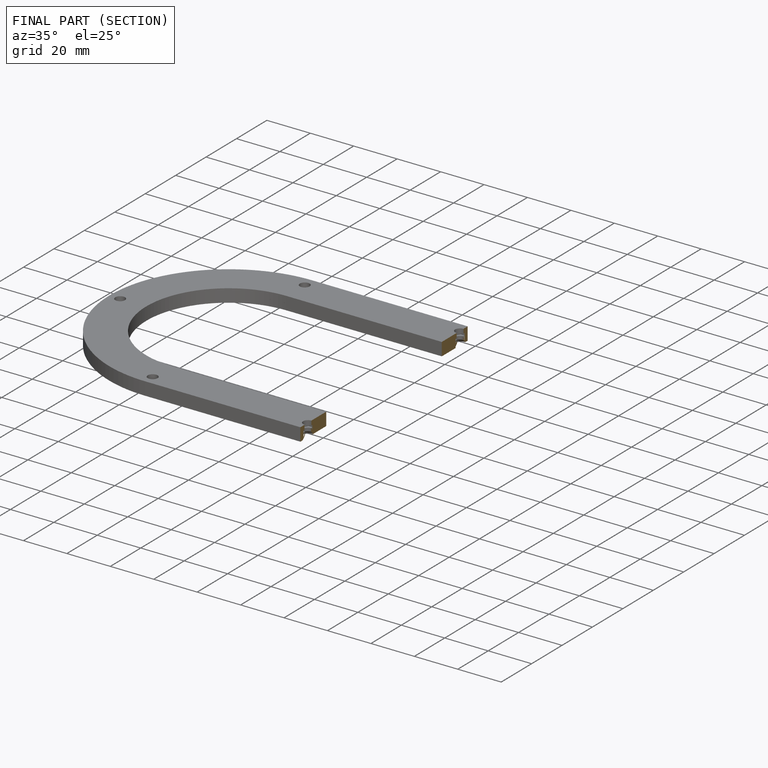
[diagram: finished part — half-section view (interior)]
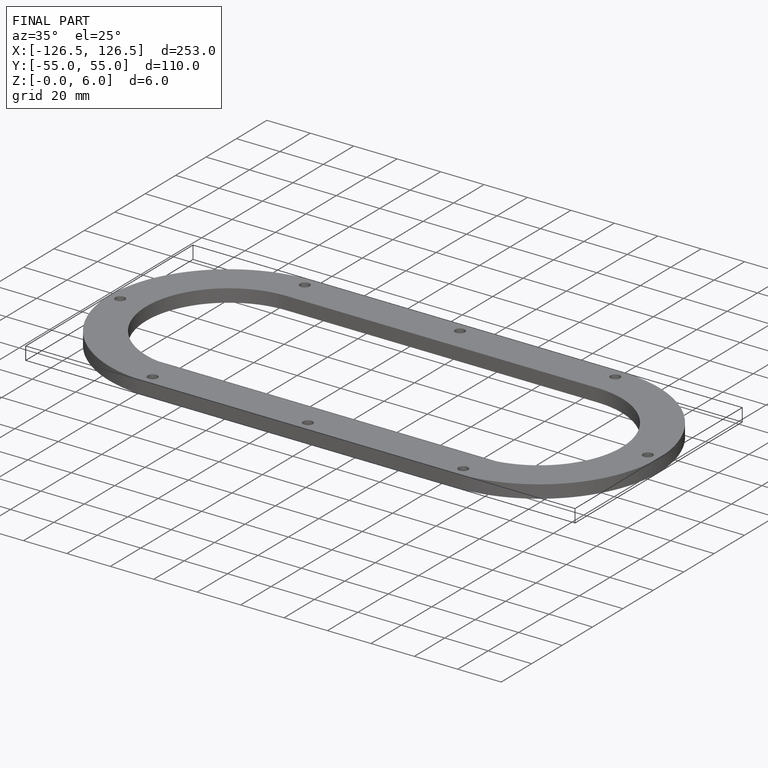
[diagram: finished part — iso view with bounding-box wireframe]
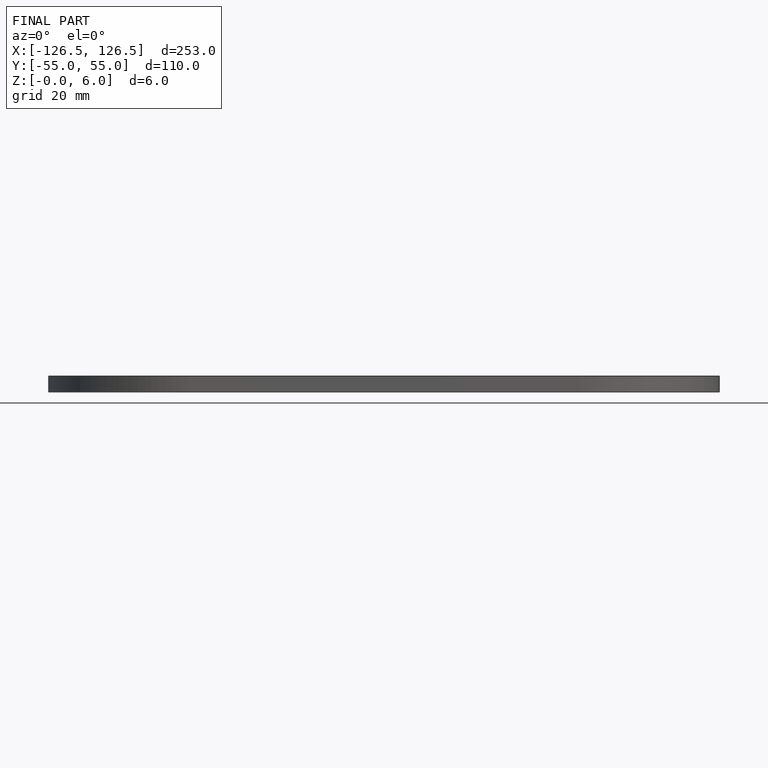
[diagram: finished part — front view with bounding-box wireframe]
